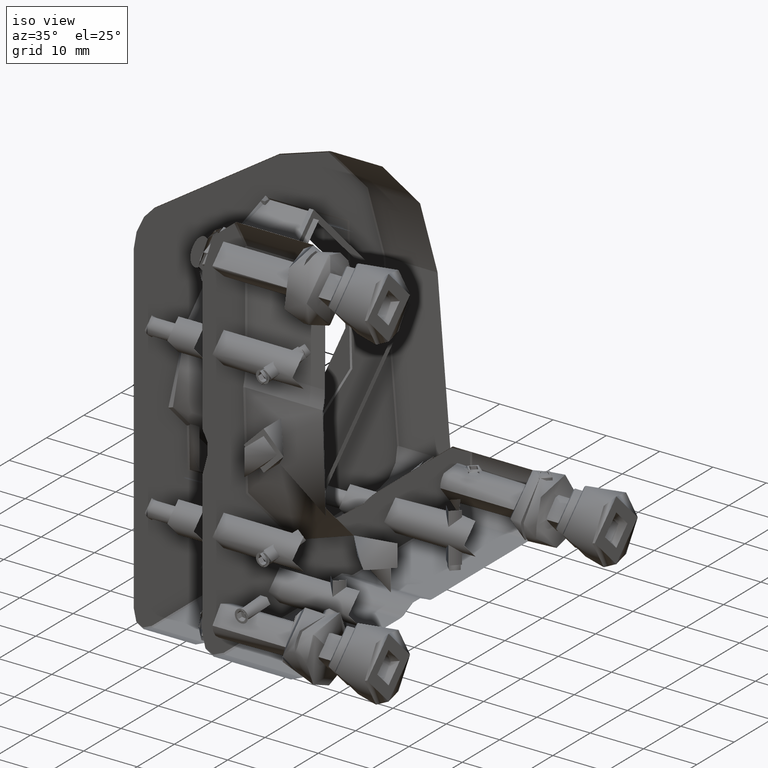
[diagram: clean part render]
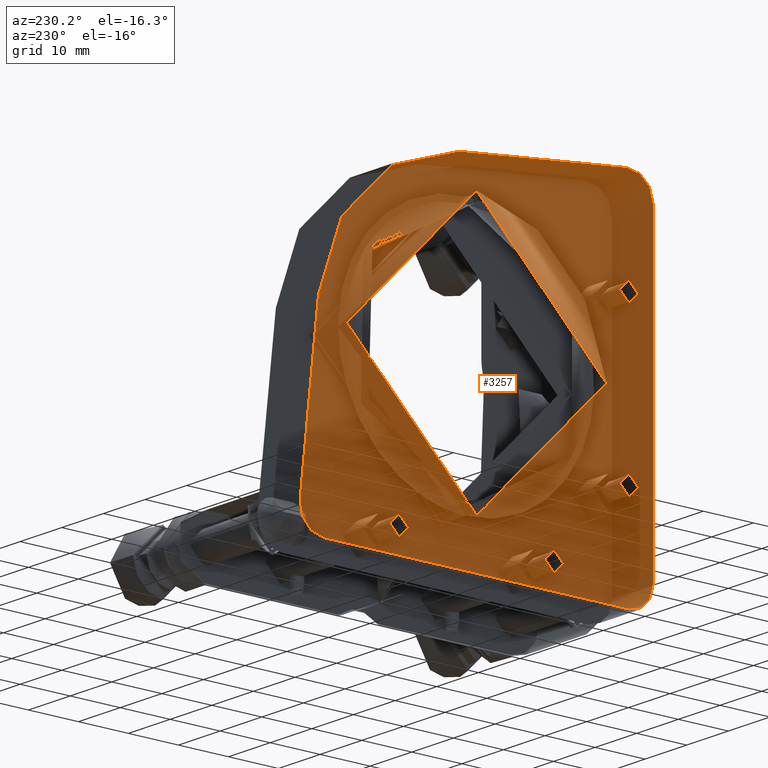
[diagram: tour spotlight — one face highlighted and labeled with its STEP entity id]
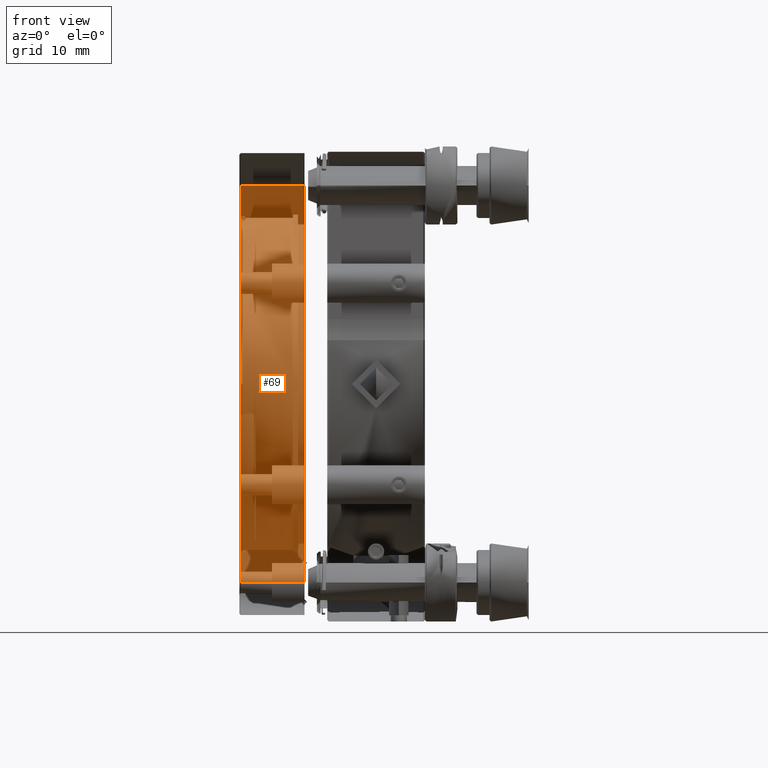
[diagram: tour spotlight — one face highlighted and labeled with its STEP entity id]
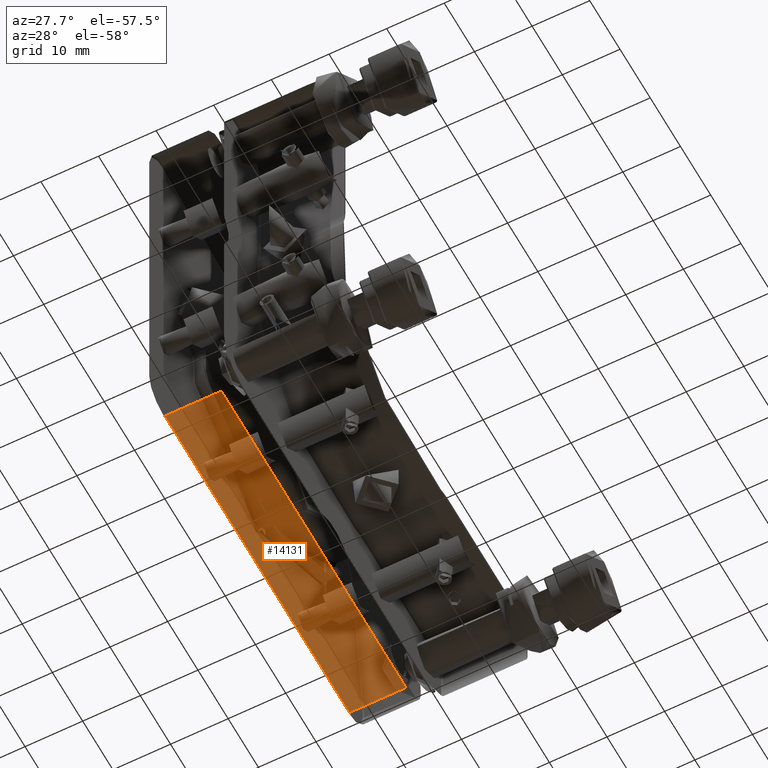
[diagram: tour spotlight — one face highlighted and labeled with its STEP entity id]
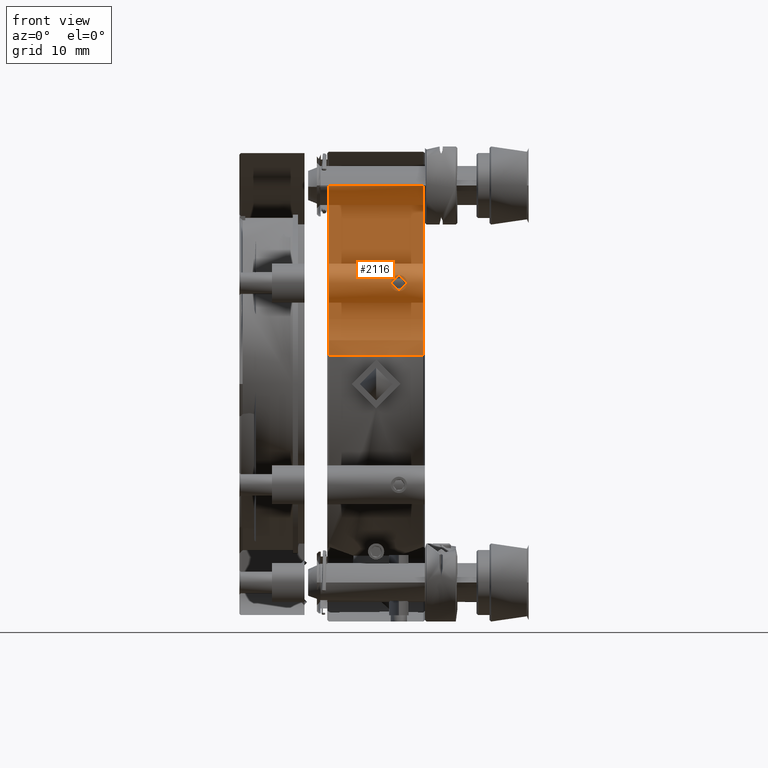
[diagram: tour spotlight — one face highlighted and labeled with its STEP entity id]
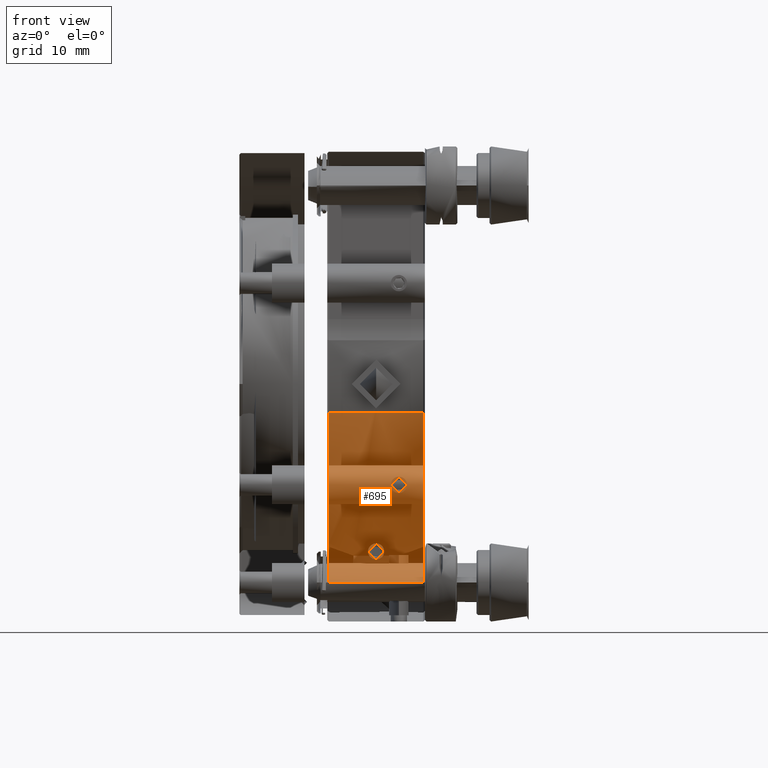
[diagram: tour spotlight — one face highlighted and labeled with its STEP entity id]
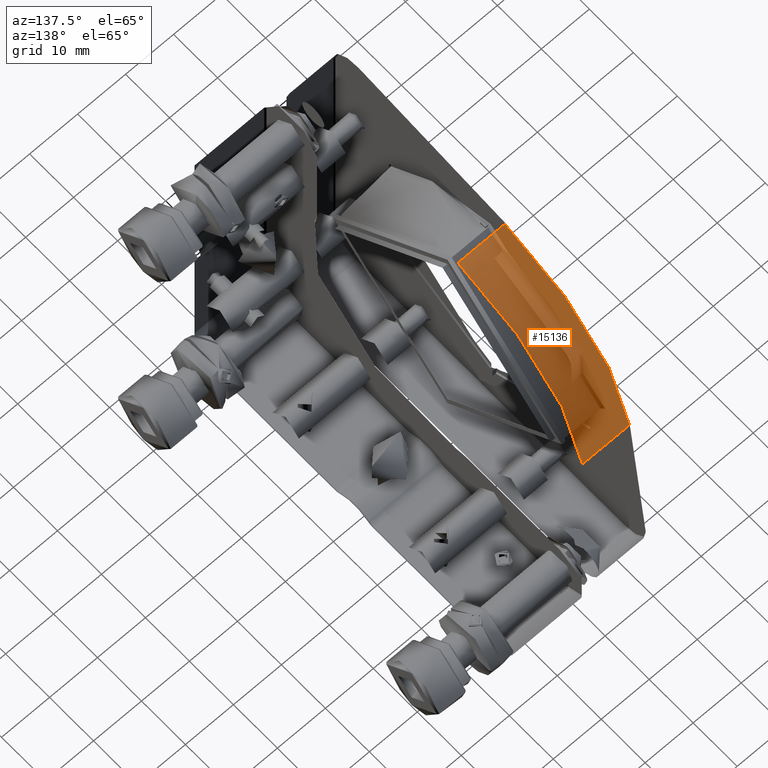
[diagram: tour spotlight — one face highlighted and labeled with its STEP entity id]
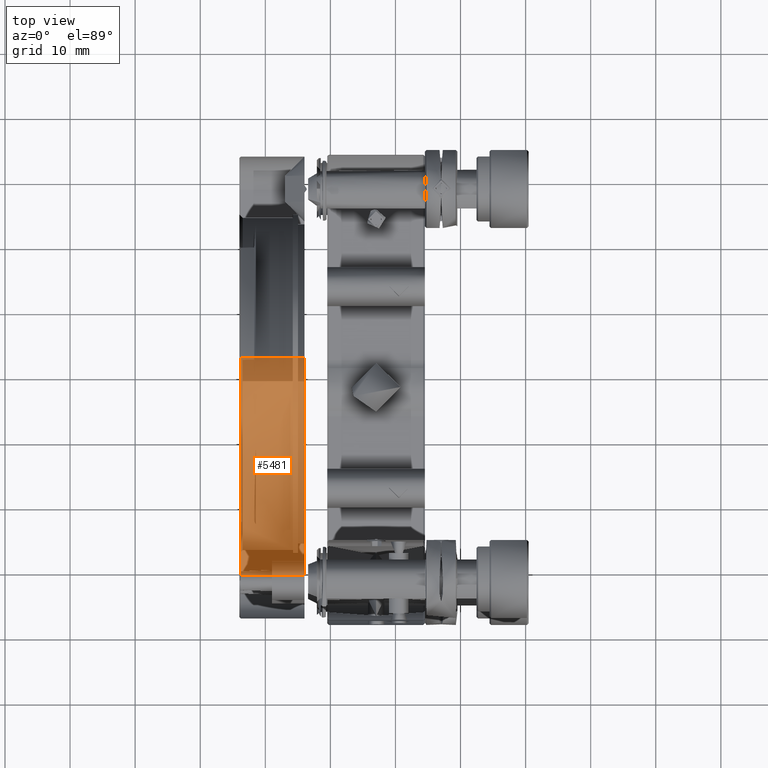
[diagram: tour spotlight — one face highlighted and labeled with its STEP entity id]
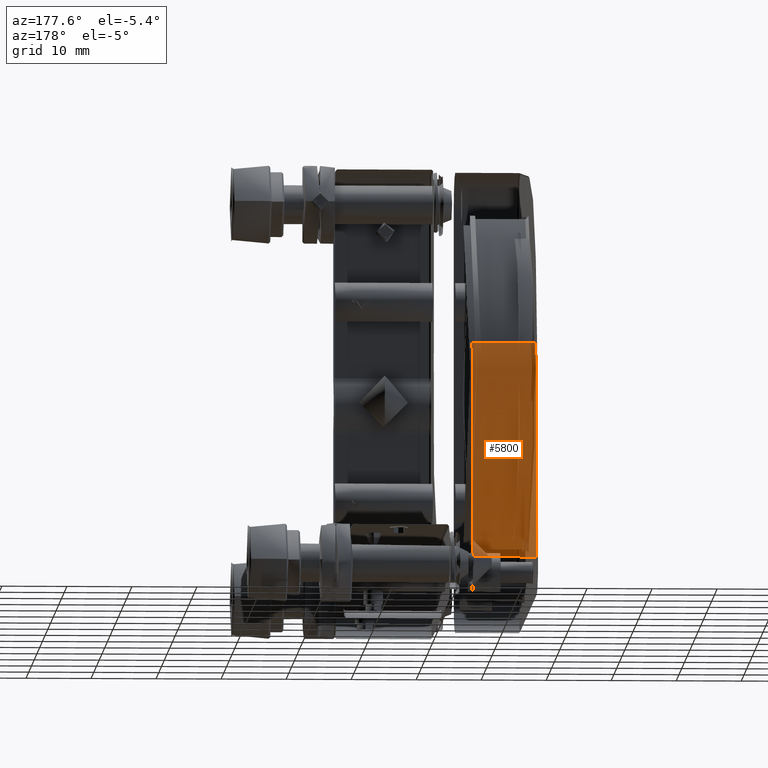
[diagram: tour spotlight — one face highlighted and labeled with its STEP entity id]
A machine part: a face-by-face anatomy tour. The part has 364 B-rep faces; the first image is the clean iso view, then the 8 largest visible faces are spotlighted one at a time (largest first), each with its STEP entity span.

Face 1 — auxiliary view, entity #3257. In plain terms, the highlighted planar face has unit normal (-1, 0, 0).
Definition (entity closure, byte-faithful):
#10 = AXIS2_PLACEMENT_3D ( 'NONE', #828, #16608, #5826 ) ;
#209 = EDGE_CURVE ( 'NONE', #2320, #2320, #5659, .T. ) ;
#268 = EDGE_LOOP ( 'NONE', ( #15330 ) ) ;
#753 = AXIS2_PLACEMENT_3D ( 'NONE', #10348, #15265, #1158 ) ;
#769 = CARTESIAN_POINT ( 'NONE',  ( -13.97561932289596243, 33.95442578108000475, 22.02231683014820618 ) ) ;
#828 = CARTESIAN_POINT ( 'NONE',  ( -13.97561932288231290, -31.81707137695324050, 67.50000000000004263 ) ) ;
#858 = CARTESIAN_POINT ( 'NONE',  ( -13.97561932287453779, 14.18292862304677016, 23.34999999993351594 ) ) ;
#1158 = DIRECTION ( 'NONE',  ( 0.000000000000000000, 1.000000000000000000, 0.000000000000000000 ) ) ;
#1509 = VECTOR ( 'NONE', #4319, 1000.000000000000000 ) ;
#1709 = CIRCLE ( 'NONE', #7025, 26.02499999999999858 ) ;
#1754 = AXIS2_PLACEMENT_3D ( 'NONE', #18549, #11008, #14153 ) ;
#1816 = DIRECTION ( 'NONE',  ( 1.000000000000000000, -0.000000000000000000, -0.000000000000000000 ) ) ;
#2029 = DIRECTION ( 'NONE',  ( 0.000000000000000000, 0.000000000000000000, 1.000000000000000000 ) ) ;
#2047 = ORIENTED_EDGE ( 'NONE', *, *, #20412, .T. ) ;
#2320 = VERTEX_POINT ( 'NONE', #858 ) ;
#2561 = CARTESIAN_POINT ( 'NONE',  ( -13.97561932291420383, 2.143277622765539014, 83.61116867184992429 ) ) ;
#2602 = DIRECTION ( 'NONE',  ( 1.000000000000000000, -3.332802067198476766E-17, -0.000000000000000000 ) ) ;
#2700 = CARTESIAN_POINT ( 'NONE',  ( -13.97561932288231290, -31.81707137695324050, 69.34999999993355857 ) ) ;
#2774 = CARTESIAN_POINT ( 'NONE',  ( -13.97561932291419318, 30.29409729489669090, 55.46034899971878929 ) ) ;
#2932 = DIRECTION ( 'NONE',  ( 2.578534704880077024E-16, -0.1088160062804642558, 0.9940619079198085295 ) ) ;
#3023 = CARTESIAN_POINT ( 'NONE',  ( -13.97561932292437703, -36.61707137694305914, 21.50000000000000355 ) ) ;
#3244 = CARTESIAN_POINT ( 'NONE',  ( -13.97561932287771569, -31.81707137695323340, 82.50000000000000000 ) ) ;
#3257 = ADVANCED_FACE ( 'NONE', ( #13763, #12098, #18486, #19747, #10530, #3953 ), #5421, .F. ) ;
#3796 = VERTEX_POINT ( 'NONE', #2774 ) ;
#3953 = FACE_OUTER_BOUND ( 'NONE', #12142, .T. ) ;
#4159 = DIRECTION ( 'NONE',  ( 0.000000000000000000, 0.000000000000000000, 1.000000000000000000 ) ) ;
#4268 = CARTESIAN_POINT ( 'NONE',  ( -13.97561932291420383, -27.34207137695324974, 52.00000000000001421 ) ) ;
#4279 = AXIS2_PLACEMENT_3D ( 'NONE', #13602, #11936, #2029 ) ;
#4319 = DIRECTION ( 'NONE',  ( 9.773090005503137866E-17, 9.773090005503137866E-17, -1.000000000000000000 ) ) ;
#4406 = EDGE_CURVE ( 'NONE', #10009, #7317, #13608, .T. ) ;
#4798 = EDGE_LOOP ( 'NONE', ( #15251 ) ) ;
#4813 = LINE ( 'NONE', #6369, #7322 ) ;
#5030 = EDGE_CURVE ( 'NONE', #6405, #7443, #10577, .T. ) ;
#5254 = ORIENTED_EDGE ( 'NONE', *, *, #19103, .T. ) ;
#5421 = PLANE ( 'NONE',  #14533 ) ;
#5659 = CIRCLE ( 'NONE', #17350, 1.849999999933515937 ) ;
#5826 = DIRECTION ( 'NONE',  ( 0.000000000000000000, 0.000000000000000000, 1.000000000000000000 ) ) ;
#6214 = CARTESIAN_POINT ( 'NONE',  ( -13.97561932291419318, 2.143277622765529689, 83.61116867184993851 ) ) ;
#6245 = ORIENTED_EDGE ( 'NONE', *, *, #209, .F. ) ;
#6369 = CARTESIAN_POINT ( 'NONE',  ( -13.97561932291420561, 33.95442578106186460, 22.02231683014622377 ) ) ;
#6405 = VERTEX_POINT ( 'NONE', #14713 ) ;
#6573 = VECTOR ( 'NONE', #14528, 1000.000000000000000 ) ;
#7025 = AXIS2_PLACEMENT_3D ( 'NONE', #13360, #2602, #13562 ) ;
#7283 = VERTEX_POINT ( 'NONE', #18594 ) ;
#7317 = VERTEX_POINT ( 'NONE', #14664 ) ;
#7322 = VECTOR ( 'NONE', #2932, 1000.000000000000227 ) ;
#7443 = VERTEX_POINT ( 'NONE', #769 ) ;
#7679 = CARTESIAN_POINT ( 'NONE',  ( -13.97561932289595532, -31.29475454680504498, 87.27149715803322749 ) ) ;
#7682 = DIRECTION ( 'NONE',  ( 0.000000000000000000, 1.000000000000000000, 0.000000000000000000 ) ) ;
#7846 = VERTEX_POINT ( 'NONE', #12542 ) ;
#8001 = EDGE_LOOP ( 'NONE', ( #6245 ) ) ;
#8221 = EDGE_CURVE ( 'NONE', #7846, #7846, #14309, .T. ) ;
#8421 = CIRCLE ( 'NONE', #13089, 31.80000000000002203 ) ;
#9425 = DIRECTION ( 'NONE',  ( 1.000000000000000000, -0.000000000000000000, -0.000000000000000000 ) ) ;
#9720 = LINE ( 'NONE', #11282, #6573 ) ;
#10009 = VERTEX_POINT ( 'NONE', #7679 ) ;
#10112 = ORIENTED_EDGE ( 'NONE', *, *, #14120, .T. ) ;
#10303 = ORIENTED_EDGE ( 'NONE', *, *, #10439, .T. ) ;
#10348 = CARTESIAN_POINT ( 'NONE',  ( -13.97561932293455911, -31.81707137695322274, 21.50000000000000000 ) ) ;
#10431 = VERTEX_POINT ( 'NONE', #2700 ) ;
#10439 = EDGE_CURVE ( 'NONE', #7443, #3796, #4813, .T. ) ;
#10530 = FACE_BOUND ( 'NONE', #8001, .T. ) ;
#10577 = CIRCLE ( 'NONE', #18271, 4.800000000042471626 ) ;
#10794 = ORIENTED_EDGE ( 'NONE', *, *, #16923, .F. ) ;
#10861 = EDGE_CURVE ( 'NONE', #19663, #10009, #12165, .T. ) ;
#10926 = VERTEX_POINT ( 'NONE', #16454 ) ;
#11008 = DIRECTION ( 'NONE',  ( 1.000000000000000000, -0.000000000000000000, -0.000000000000000000 ) ) ;
#11282 = CARTESIAN_POINT ( 'NONE',  ( -13.97561932291420028, 34.18292862304677016, 16.69999999999999218 ) ) ;
#11387 = VECTOR ( 'NONE', #18763, 1000.000000000000227 ) ;
#11890 = CARTESIAN_POINT ( 'NONE',  ( -13.97561932291420028, -1.317071376953247608, 52.00000000000001421 ) ) ;
#11936 = DIRECTION ( 'NONE',  ( 1.000000000000000000, -0.000000000000000000, -0.000000000000000000 ) ) ;
#12098 = FACE_BOUND ( 'NONE', #268, .T. ) ;
#12142 = EDGE_LOOP ( 'NONE', ( #5254, #17511, #16747, #10303, #10112, #15777, #16993, #2047 ) ) ;
#12165 = LINE ( 'NONE', #2561, #11387 ) ;
#12459 = EDGE_CURVE ( 'NONE', #10926, #6405, #9720, .T. ) ;
#12542 = CARTESIAN_POINT ( 'NONE',  ( -13.97561932294502718, -31.81707137695325471, 38.34999999999036646 ) ) ;
#13079 = DIRECTION ( 'NONE',  ( 0.000000000000000000, 0.000000000000000000, -1.000000000000000000 ) ) ;
#13089 = AXIS2_PLACEMENT_3D ( 'NONE', #13280, #1816, #13079 ) ;
#13280 = CARTESIAN_POINT ( 'NONE',  ( -13.97561932291419318, -1.317071376953247608, 52.00000000000001421 ) ) ;
#13360 = CARTESIAN_POINT ( 'NONE',  ( -13.97561932291420383, -1.317071376953247608, 52.00000000000001421 ) ) ;
#13562 = DIRECTION ( 'NONE',  ( 0.000000000000000000, -1.000000000000000000, 0.000000000000000000 ) ) ;
#13602 = CARTESIAN_POINT ( 'NONE',  ( -13.97561932294502718, -31.81707137695325471, 36.50000000000000711 ) ) ;
#13608 = CIRCLE ( 'NONE', #16962, 4.800000000007006662 ) ;
#13763 = FACE_BOUND ( 'NONE', #15676, .T. ) ;
#14120 = EDGE_CURVE ( 'NONE', #3796, #19663, #8421, .T. ) ;
#14153 = DIRECTION ( 'NONE',  ( 0.000000000000000000, 0.000000000000000000, 1.000000000000000000 ) ) ;
#14309 = CIRCLE ( 'NONE', #4279, 1.849999999990359356 ) ;
#14322 = DIRECTION ( 'NONE',  ( 1.000000000000000000, 0.000000000000000000, 0.000000000000000000 ) ) ;
#14528 = DIRECTION ( 'NONE',  ( 0.000000000000000000, 1.000000000000000000, -0.000000000000000000 ) ) ;
#14533 = AXIS2_PLACEMENT_3D ( 'NONE', #11890, #18378, #4159 ) ;
#14664 = CARTESIAN_POINT ( 'NONE',  ( -13.97561932288683728, -36.61707137694734371, 82.50000000000001421 ) ) ;
#14713 = CARTESIAN_POINT ( 'NONE',  ( -13.97561932289596065, 29.18292862304677016, 16.69999999998174900 ) ) ;
#15251 = ORIENTED_EDGE ( 'NONE', *, *, #8221, .F. ) ;
#15265 = DIRECTION ( 'NONE',  ( 1.000000000000000000, -1.734723475999210005E-16, 0.000000000000000000 ) ) ;
#15330 = ORIENTED_EDGE ( 'NONE', *, *, #15386, .F. ) ;
#15386 = EDGE_CURVE ( 'NONE', #10431, #10431, #20031, .T. ) ;
#15437 = EDGE_LOOP ( 'NONE', ( #16344 ) ) ;
#15676 = EDGE_LOOP ( 'NONE', ( #10794 ) ) ;
#15777 = ORIENTED_EDGE ( 'NONE', *, *, #10861, .T. ) ;
#16344 = ORIENTED_EDGE ( 'NONE', *, *, #18635, .F. ) ;
#16454 = CARTESIAN_POINT ( 'NONE',  ( -13.97561932294368070, -31.81707137695322274, 16.69999999998076490 ) ) ;
#16608 = DIRECTION ( 'NONE',  ( 1.000000000000000000, -0.000000000000000000, -0.000000000000000000 ) ) ;
#16747 = ORIENTED_EDGE ( 'NONE', *, *, #5030, .T. ) ;
#16923 = EDGE_CURVE ( 'NONE', #18698, #18698, #1709, .T. ) ;
#16953 = VERTEX_POINT ( 'NONE', #3023 ) ;
#16962 = AXIS2_PLACEMENT_3D ( 'NONE', #3244, #14322, #17458 ) ;
#16993 = ORIENTED_EDGE ( 'NONE', *, *, #4406, .T. ) ;
#17295 = DIRECTION ( 'NONE',  ( 1.000000000000000000, -1.734723475999210005E-16, 0.000000000000000000 ) ) ;
#17350 = AXIS2_PLACEMENT_3D ( 'NONE', #19245, #9425, #19147 ) ;
#17458 = DIRECTION ( 'NONE',  ( 0.000000000000000000, 0.000000000000000000, -1.000000000000000000 ) ) ;
#17511 = ORIENTED_EDGE ( 'NONE', *, *, #12459, .T. ) ;
#17775 = CIRCLE ( 'NONE', #753, 4.800000000042478732 ) ;
#18104 = CIRCLE ( 'NONE', #1754, 1.849999999933515937 ) ;
#18271 = AXIS2_PLACEMENT_3D ( 'NONE', #20233, #17295, #7682 ) ;
#18378 = DIRECTION ( 'NONE',  ( -1.000000000000000000, 0.000000000000000000, 0.000000000000000000 ) ) ;
#18486 = FACE_BOUND ( 'NONE', #4798, .T. ) ;
#18549 = CARTESIAN_POINT ( 'NONE',  ( -13.97561932287453779, -16.81707137695326182, 21.50000000000000000 ) ) ;
#18594 = CARTESIAN_POINT ( 'NONE',  ( -13.97561932287453779, -16.81707137695326182, 23.34999999993351594 ) ) ;
#18635 = EDGE_CURVE ( 'NONE', #7283, #7283, #18104, .T. ) ;
#18644 = CARTESIAN_POINT ( 'NONE',  ( -13.97561932291419318, -36.61707137695324121, 16.50000000000000000 ) ) ;
#18698 = VERTEX_POINT ( 'NONE', #4268 ) ;
#18763 = DIRECTION ( 'NONE',  ( 3.094241645856092922E-16, -0.9940619079198085295, 0.1088160062804641587 ) ) ;
#19103 = EDGE_CURVE ( 'NONE', #16953, #10926, #17775, .T. ) ;
#19147 = DIRECTION ( 'NONE',  ( 0.000000000000000000, 0.000000000000000000, 1.000000000000000000 ) ) ;
#19245 = CARTESIAN_POINT ( 'NONE',  ( -13.97561932287453779, 14.18292862304677016, 21.50000000000000000 ) ) ;
#19663 = VERTEX_POINT ( 'NONE', #6214 ) ;
#19747 = FACE_BOUND ( 'NONE', #15437, .T. ) ;
#20031 = CIRCLE ( 'NONE', #10, 1.849999999933515937 ) ;
#20233 = CARTESIAN_POINT ( 'NONE',  ( -13.97561932287771924, 29.18292862304677016, 21.50000000000000000 ) ) ;
#20412 = EDGE_CURVE ( 'NONE', #7317, #16953, #20420, .T. ) ;
#20420 = LINE ( 'NONE', #18644, #1509 ) ;

Face 2 — front view, entity #69. In plain terms, the highlighted planar face has unit normal (-0, 1, 0).
Definition (entity closure, byte-faithful):
#69 = ADVANCED_FACE ( 'NONE', ( #5552 ), #10049, .T. ) ;
#1015 = ORIENTED_EDGE ( 'NONE', *, *, #18351, .T. ) ;
#1100 = EDGE_CURVE ( 'NONE', #12466, #8326, #11094, .T. ) ;
#1475 = CARTESIAN_POINT ( 'NONE',  ( -13.77561932291420810, -36.81707137695322274, 16.50000000000000000 ) ) ;
#1580 = CARTESIAN_POINT ( 'NONE',  ( -3.975619322914199394, -36.81707137695322274, 21.50000000000000000 ) ) ;
#3573 = DIRECTION ( 'NONE',  ( -0.000000000000000000, 1.000000000000000000, 1.954618001100627820E-16 ) ) ;
#4106 = DIRECTION ( 'NONE',  ( 1.000000000000000000, -0.000000000000000000, -0.000000000000000000 ) ) ;
#4420 = CARTESIAN_POINT ( 'NONE',  ( -3.975619322914199394, -36.81707137695322984, 82.50000000000000000 ) ) ;
#4475 = CARTESIAN_POINT ( 'NONE',  ( -13.77561932291763647, -36.81707137694039034, 82.50000000000000000 ) ) ;
#5552 = FACE_OUTER_BOUND ( 'NONE', #15380, .T. ) ;
#5787 = EDGE_CURVE ( 'NONE', #9614, #8326, #13703, .T. ) ;
#6701 = CARTESIAN_POINT ( 'NONE',  ( -3.975619322914199394, -36.81707137695322274, 16.50000000000000000 ) ) ;
#7659 = AXIS2_PLACEMENT_3D ( 'NONE', #6701, #3573, #14863 ) ;
#7799 = LINE ( 'NONE', #9165, #20100 ) ;
#8326 = VERTEX_POINT ( 'NONE', #4420 ) ;
#8338 = VECTOR ( 'NONE', #14527, 1000.000000000000000 ) ;
#8948 = VERTEX_POINT ( 'NONE', #11445 ) ;
#9015 = CARTESIAN_POINT ( 'NONE',  ( -3.975619322914199394, -36.81707137695323695, 82.50000000000000000 ) ) ;
#9165 = CARTESIAN_POINT ( 'NONE',  ( -3.975619322914199394, -36.81707137695322274, 21.50000000000000000 ) ) ;
#9614 = VERTEX_POINT ( 'NONE', #4475 ) ;
#9635 = ORIENTED_EDGE ( 'NONE', *, *, #1100, .F. ) ;
#10049 = PLANE ( 'NONE',  #7659 ) ;
#10414 = EDGE_CURVE ( 'NONE', #8948, #9614, #12540, .T. ) ;
#11070 = ORIENTED_EDGE ( 'NONE', *, *, #5787, .T. ) ;
#11094 = LINE ( 'NONE', #14233, #13012 ) ;
#11445 = CARTESIAN_POINT ( 'NONE',  ( -13.77561932291420810, -36.81707137695322274, 21.50000000000000355 ) ) ;
#11928 = ORIENTED_EDGE ( 'NONE', *, *, #10414, .T. ) ;
#12466 = VERTEX_POINT ( 'NONE', #1580 ) ;
#12540 = LINE ( 'NONE', #1475, #8338 ) ;
#12552 = DIRECTION ( 'NONE',  ( 0.000000000000000000, 0.000000000000000000, 1.000000000000000000 ) ) ;
#13012 = VECTOR ( 'NONE', #12552, 1000.000000000000000 ) ;
#13703 = LINE ( 'NONE', #9015, #18285 ) ;
#14233 = CARTESIAN_POINT ( 'NONE',  ( -3.975619322914199394, -36.81707137695322274, 52.00000000000001421 ) ) ;
#14527 = DIRECTION ( 'NONE',  ( 0.000000000000000000, -1.954618001100627820E-16, 1.000000000000000000 ) ) ;
#14863 = DIRECTION ( 'NONE',  ( 0.000000000000000000, -1.954618001100627820E-16, 1.000000000000000000 ) ) ;
#15380 = EDGE_LOOP ( 'NONE', ( #11928, #11070, #9635, #1015 ) ) ;
#15541 = DIRECTION ( 'NONE',  ( -1.000000000000000000, -0.000000000000000000, -0.000000000000000000 ) ) ;
#18285 = VECTOR ( 'NONE', #4106, 1000.000000000000000 ) ;
#18351 = EDGE_CURVE ( 'NONE', #12466, #8948, #7799, .T. ) ;
#20100 = VECTOR ( 'NONE', #15541, 1000.000000000000000 ) ;

Face 3 — auxiliary view, entity #14131. In plain terms, the highlighted planar face has unit normal (0, 0, 1).
Definition (entity closure, byte-faithful):
#1581 = VECTOR ( 'NONE', #13160, 1000.000000000000000 ) ;
#1600 = EDGE_CURVE ( 'NONE', #18424, #15434, #9836, .T. ) ;
#1712 = CARTESIAN_POINT ( 'NONE',  ( -3.975619322914199394, 34.18292862304677016, 16.50000000000000000 ) ) ;
#2119 = FACE_OUTER_BOUND ( 'NONE', #6293, .T. ) ;
#3042 = LINE ( 'NONE', #4503, #15853 ) ;
#3837 = VERTEX_POINT ( 'NONE', #11307 ) ;
#4040 = LINE ( 'NONE', #10408, #17063 ) ;
#4356 = CARTESIAN_POINT ( 'NONE',  ( -13.77561932291420810, 29.18292862304677016, 16.50000000000000000 ) ) ;
#4503 = CARTESIAN_POINT ( 'NONE',  ( -3.975619322914199394, 29.18292862304677016, 16.50000000000000000 ) ) ;
#6293 = EDGE_LOOP ( 'NONE', ( #19326, #16621, #20094, #14605 ) ) ;
#8279 = DIRECTION ( 'NONE',  ( 0.000000000000000000, 0.000000000000000000, 1.000000000000000000 ) ) ;
#9836 = LINE ( 'NONE', #14742, #1581 ) ;
#9962 = EDGE_CURVE ( 'NONE', #20220, #3837, #12378, .T. ) ;
#10408 = CARTESIAN_POINT ( 'NONE',  ( -3.975619322914199394, -31.81707137695322274, 16.50000000000000000 ) ) ;
#10482 = CARTESIAN_POINT ( 'NONE',  ( -3.975619322914199394, 29.18292862304677016, 16.50000000000000000 ) ) ;
#11307 = CARTESIAN_POINT ( 'NONE',  ( -3.975619322914199394, -31.81707137695322274, 16.50000000000000000 ) ) ;
#12378 = LINE ( 'NONE', #15849, #16345 ) ;
#13160 = DIRECTION ( 'NONE',  ( 0.000000000000000000, -1.000000000000000000, -0.000000000000000000 ) ) ;
#13759 = AXIS2_PLACEMENT_3D ( 'NONE', #1712, #8279, #16235 ) ;
#13841 = DIRECTION ( 'NONE',  ( -0.000000000000000000, -1.000000000000000000, 0.000000000000000000 ) ) ;
#14131 = ADVANCED_FACE ( 'NONE', ( #2119 ), #14861, .T. ) ;
#14605 = ORIENTED_EDGE ( 'NONE', *, *, #19336, .T. ) ;
#14742 = CARTESIAN_POINT ( 'NONE',  ( -13.77561932291420810, 34.18292862304677016, 16.50000000000000000 ) ) ;
#14861 = PLANE ( 'NONE',  #13759 ) ;
#15434 = VERTEX_POINT ( 'NONE', #19948 ) ;
#15849 = CARTESIAN_POINT ( 'NONE',  ( -3.975619322914199394, -1.317071376953247608, 16.50000000000000000 ) ) ;
#15853 = VECTOR ( 'NONE', #18925, 1000.000000000000000 ) ;
#16235 = DIRECTION ( 'NONE',  ( 1.000000000000000000, 0.000000000000000000, -0.000000000000000000 ) ) ;
#16345 = VECTOR ( 'NONE', #13841, 1000.000000000000000 ) ;
#16621 = ORIENTED_EDGE ( 'NONE', *, *, #17166, .T. ) ;
#17063 = VECTOR ( 'NONE', #18162, 1000.000000000000000 ) ;
#17166 = EDGE_CURVE ( 'NONE', #15434, #3837, #4040, .T. ) ;
#18162 = DIRECTION ( 'NONE',  ( 1.000000000000000000, -0.000000000000000000, -0.000000000000000000 ) ) ;
#18424 = VERTEX_POINT ( 'NONE', #4356 ) ;
#18925 = DIRECTION ( 'NONE',  ( -1.000000000000000000, -0.000000000000000000, 0.000000000000000000 ) ) ;
#19326 = ORIENTED_EDGE ( 'NONE', *, *, #1600, .T. ) ;
#19336 = EDGE_CURVE ( 'NONE', #20220, #18424, #3042, .T. ) ;
#19948 = CARTESIAN_POINT ( 'NONE',  ( -13.77561932294605818, -31.81707137695322274, 16.50000000001614353 ) ) ;
#20094 = ORIENTED_EDGE ( 'NONE', *, *, #9962, .F. ) ;
#20220 = VERTEX_POINT ( 'NONE', #10482 ) ;

Face 4 — front view, entity #2116. In plain terms, the highlighted planar face has unit normal (0, 1, 0).
Definition (entity closure, byte-faithful):
#821 = CIRCLE ( 'NONE', #3824, 1.249999999999987121 ) ;
#918 = ORIENTED_EDGE ( 'NONE', *, *, #11432, .T. ) ;
#1221 = FACE_BOUND ( 'NONE', #7161, .T. ) ;
#1270 = VERTEX_POINT ( 'NONE', #19459 ) ;
#1392 = DIRECTION ( 'NONE',  ( -0.000000000000000000, 0.000000000000000000, -1.000000000000000000 ) ) ;
#1650 = EDGE_CURVE ( 'NONE', #19501, #8695, #2103, .T. ) ;
#1723 = VECTOR ( 'NONE', #6238, 1000.000000000000000 ) ;
#2103 = LINE ( 'NONE', #6380, #11577 ) ;
#2116 = ADVANCED_FACE ( 'NONE', ( #13752, #1221 ), #7587, .T. ) ;
#2752 = LINE ( 'NONE', #12461, #17176 ) ;
#3011 = CARTESIAN_POINT ( 'NONE',  ( 14.52438067708579972, -37.81707137695322274, 82.49999999999998579 ) ) ;
#3824 = AXIS2_PLACEMENT_3D ( 'NONE', #14936, #5008, #11584 ) ;
#4251 = DIRECTION ( 'NONE',  ( 0.000000000000000000, -0.000000000000000000, 1.000000000000000000 ) ) ;
#4686 = VERTEX_POINT ( 'NONE', #10950 ) ;
#4969 = VERTEX_POINT ( 'NONE', #17505 ) ;
#5008 = DIRECTION ( 'NONE',  ( 0.000000000000000000, 1.000000000000000000, 0.000000000000000000 ) ) ;
#5289 = DIRECTION ( 'NONE',  ( -1.000000000000000000, -0.000000000000000000, 0.000000000000000000 ) ) ;
#5951 = VECTOR ( 'NONE', #5289, 1000.000000000000000 ) ;
#6238 = DIRECTION ( 'NONE',  ( 1.000000000000000000, 0.000000000000000000, -0.000000000000000000 ) ) ;
#6380 = CARTESIAN_POINT ( 'NONE',  ( -0.2256193229141847945, -37.81707137695322274, 88.50000000000000000 ) ) ;
#6426 = AXIS2_PLACEMENT_3D ( 'NONE', #12189, #18575, #4251 ) ;
#7161 = EDGE_LOOP ( 'NONE', ( #17572 ) ) ;
#7587 = PLANE ( 'NONE',  #6426 ) ;
#8249 = CARTESIAN_POINT ( 'NONE',  ( -0.2256193229153002355, -37.81707137697914334, 82.49999999999998579 ) ) ;
#8467 = DIRECTION ( 'NONE',  ( -0.000000000000000000, 0.000000000000000000, -1.000000000000000000 ) ) ;
#8472 = CARTESIAN_POINT ( 'NONE',  ( -0.2256193229153002355, -37.81707137694867527, 56.33012701892233309 ) ) ;
#8695 = VERTEX_POINT ( 'NONE', #8472 ) ;
#9893 = LINE ( 'NONE', #11558, #5951 ) ;
#10950 = CARTESIAN_POINT ( 'NONE',  ( 10.52438067708579972, -37.81707137695316590, 66.25000000000014211 ) ) ;
#11432 = EDGE_CURVE ( 'NONE', #19501, #4969, #15874, .T. ) ;
#11558 = CARTESIAN_POINT ( 'NONE',  ( 14.52438067708579972, -37.81707137695322274, 56.33012701892233309 ) ) ;
#11577 = VECTOR ( 'NONE', #8467, 1000.000000000000000 ) ;
#11584 = DIRECTION ( 'NONE',  ( 0.000000000000000000, 0.000000000000000000, -1.000000000000000000 ) ) ;
#12189 = CARTESIAN_POINT ( 'NONE',  ( 14.52438067708579972, -37.81707137695322274, 88.50000000000000000 ) ) ;
#12461 = CARTESIAN_POINT ( 'NONE',  ( 14.27438067708578906, -37.81707137695322274, 88.50000000000000000 ) ) ;
#12989 = EDGE_CURVE ( 'NONE', #1270, #8695, #9893, .T. ) ;
#13752 = FACE_OUTER_BOUND ( 'NONE', #16887, .T. ) ;
#14936 = CARTESIAN_POINT ( 'NONE',  ( 10.52438067708579972, -37.81707137695316590, 67.50000000000012790 ) ) ;
#15874 = LINE ( 'NONE', #3011, #1723 ) ;
#16887 = EDGE_LOOP ( 'NONE', ( #18633, #918, #19791, #19115 ) ) ;
#17176 = VECTOR ( 'NONE', #1392, 1000.000000000000000 ) ;
#17505 = CARTESIAN_POINT ( 'NONE',  ( 14.27438067708578906, -37.81707137695322274, 82.49999999999998579 ) ) ;
#17572 = ORIENTED_EDGE ( 'NONE', *, *, #19396, .F. ) ;
#18575 = DIRECTION ( 'NONE',  ( 0.000000000000000000, 1.000000000000000000, 0.000000000000000000 ) ) ;
#18633 = ORIENTED_EDGE ( 'NONE', *, *, #1650, .F. ) ;
#19115 = ORIENTED_EDGE ( 'NONE', *, *, #12989, .T. ) ;
#19396 = EDGE_CURVE ( 'NONE', #4686, #4686, #821, .T. ) ;
#19459 = CARTESIAN_POINT ( 'NONE',  ( 14.27438067708266090, -37.81707137697286214, 56.33012701892233309 ) ) ;
#19501 = VERTEX_POINT ( 'NONE', #8249 ) ;
#19791 = ORIENTED_EDGE ( 'NONE', *, *, #20451, .T. ) ;
#20451 = EDGE_CURVE ( 'NONE', #4969, #1270, #2752, .T. ) ;

Face 5 — front view, entity #695. In plain terms, the highlighted planar face has unit normal (0, 1, 0).
Definition (entity closure, byte-faithful):
#40 = AXIS2_PLACEMENT_3D ( 'NONE', #2208, #16827, #12119 ) ;
#296 = VECTOR ( 'NONE', #14400, 1000.000000000000000 ) ;
#695 = ADVANCED_FACE ( 'NONE', ( #8616, #7039, #18339 ), #4017, .T. ) ;
#1134 = CARTESIAN_POINT ( 'NONE',  ( 10.52438067708579972, -37.81707137695327248, 35.25000000000016342 ) ) ;
#1760 = CARTESIAN_POINT ( 'NONE',  ( -0.2256193229141847945, -37.81707137695322274, 88.50000000000000000 ) ) ;
#2079 = EDGE_LOOP ( 'NONE', ( #3201, #5766, #15400, #3259 ) ) ;
#2208 = CARTESIAN_POINT ( 'NONE',  ( 7.024380677085800606, -37.81707137695322274, 26.24999999999999645 ) ) ;
#2599 = VERTEX_POINT ( 'NONE', #15562 ) ;
#2756 = VERTEX_POINT ( 'NONE', #17678 ) ;
#3101 = LINE ( 'NONE', #19091, #15993 ) ;
#3201 = ORIENTED_EDGE ( 'NONE', *, *, #12949, .F. ) ;
#3259 = ORIENTED_EDGE ( 'NONE', *, *, #14489, .T. ) ;
#3327 = DIRECTION ( 'NONE',  ( -1.000000000000000000, 0.000000000000000000, 0.000000000000000000 ) ) ;
#3916 = ORIENTED_EDGE ( 'NONE', *, *, #15670, .T. ) ;
#4017 = PLANE ( 'NONE',  #19368 ) ;
#5378 = CARTESIAN_POINT ( 'NONE',  ( 14.52438067708579972, -37.81707137695322274, 47.66987298107795823 ) ) ;
#5580 = DIRECTION ( 'NONE',  ( 0.000000000000000000, -0.000000000000000000, 1.000000000000000000 ) ) ;
#5727 = DIRECTION ( 'NONE',  ( 0.000000000000000000, 0.000000000000000000, -1.000000000000000000 ) ) ;
#5766 = ORIENTED_EDGE ( 'NONE', *, *, #9124, .T. ) ;
#5875 = CARTESIAN_POINT ( 'NONE',  ( 14.27438067708422409, -37.81707137693446441, 21.49999999999999289 ) ) ;
#7039 = FACE_BOUND ( 'NONE', #14616, .T. ) ;
#7279 = DIRECTION ( 'NONE',  ( 0.000000000000000000, 1.000000000000000000, 0.000000000000000000 ) ) ;
#8130 = LINE ( 'NONE', #16083, #19126 ) ;
#8240 = VERTEX_POINT ( 'NONE', #18124 ) ;
#8616 = FACE_OUTER_BOUND ( 'NONE', #2079, .T. ) ;
#8887 = EDGE_CURVE ( 'NONE', #16597, #20252, #3101, .T. ) ;
#9124 = EDGE_CURVE ( 'NONE', #2756, #16597, #15102, .T. ) ;
#9596 = LINE ( 'NONE', #1760, #296 ) ;
#9678 = DIRECTION ( 'NONE',  ( -0.000000000000000000, 0.000000000000000000, -1.000000000000000000 ) ) ;
#10539 = VERTEX_POINT ( 'NONE', #1134 ) ;
#11893 = CARTESIAN_POINT ( 'NONE',  ( 10.52438067708579972, -37.81707137695327248, 36.50000000000014921 ) ) ;
#12010 = CIRCLE ( 'NONE', #12712, 1.249999999999987121 ) ;
#12119 = DIRECTION ( 'NONE',  ( 0.000000000000000000, 0.000000000000000000, -1.000000000000000000 ) ) ;
#12676 = CARTESIAN_POINT ( 'NONE',  ( 14.27438067708422587, -37.81707137695841681, 47.66987298107795823 ) ) ;
#12712 = AXIS2_PLACEMENT_3D ( 'NONE', #11893, #7279, #5727 ) ;
#12949 = EDGE_CURVE ( 'NONE', #2756, #8240, #9596, .T. ) ;
#13107 = DIRECTION ( 'NONE',  ( 1.000000000000000000, 0.000000000000000000, -0.000000000000000000 ) ) ;
#13515 = CARTESIAN_POINT ( 'NONE',  ( 14.52438067708579972, -37.81707137695322274, 88.50000000000000000 ) ) ;
#14400 = DIRECTION ( 'NONE',  ( -0.000000000000000000, 0.000000000000000000, -1.000000000000000000 ) ) ;
#14489 = EDGE_CURVE ( 'NONE', #20252, #8240, #8130, .T. ) ;
#14616 = EDGE_LOOP ( 'NONE', ( #18293 ) ) ;
#14648 = VECTOR ( 'NONE', #13107, 1000.000000000000000 ) ;
#15102 = LINE ( 'NONE', #5378, #14648 ) ;
#15400 = ORIENTED_EDGE ( 'NONE', *, *, #8887, .T. ) ;
#15467 = EDGE_CURVE ( 'NONE', #10539, #10539, #12010, .T. ) ;
#15562 = CARTESIAN_POINT ( 'NONE',  ( 7.024380677085800606, -37.81707137695322274, 25.00000000000000000 ) ) ;
#15670 = EDGE_CURVE ( 'NONE', #2599, #2599, #17057, .T. ) ;
#15993 = VECTOR ( 'NONE', #9678, 1000.000000000000000 ) ;
#16083 = CARTESIAN_POINT ( 'NONE',  ( 14.52438067708579972, -37.81707137695322984, 21.49999999999999645 ) ) ;
#16597 = VERTEX_POINT ( 'NONE', #12676 ) ;
#16599 = EDGE_LOOP ( 'NONE', ( #3916 ) ) ;
#16827 = DIRECTION ( 'NONE',  ( -0.000000000000000000, -1.000000000000000000, -0.000000000000000000 ) ) ;
#17057 = CIRCLE ( 'NONE', #40, 1.249999999999994227 ) ;
#17678 = CARTESIAN_POINT ( 'NONE',  ( -0.2256193229141847945, -37.81707137695322274, 47.66987298107795823 ) ) ;
#18124 = CARTESIAN_POINT ( 'NONE',  ( -0.2256193229814799084, -37.81707137686977660, 21.49999999999999289 ) ) ;
#18293 = ORIENTED_EDGE ( 'NONE', *, *, #15467, .F. ) ;
#18339 = FACE_BOUND ( 'NONE', #16599, .T. ) ;
#19091 = CARTESIAN_POINT ( 'NONE',  ( 14.27438067708578906, -37.81707137695322274, 88.50000000000000000 ) ) ;
#19126 = VECTOR ( 'NONE', #3327, 1000.000000000000000 ) ;
#19368 = AXIS2_PLACEMENT_3D ( 'NONE', #13515, #19909, #5580 ) ;
#19909 = DIRECTION ( 'NONE',  ( 0.000000000000000000, 1.000000000000000000, 0.000000000000000000 ) ) ;
#20252 = VERTEX_POINT ( 'NONE', #5875 ) ;

Face 6 — auxiliary view, entity #15136. In plain terms, the highlighted cylindrical surface (partial cylindrical patch) has radius 32 mm, axis along (-1, -0, -0).
Definition (entity closure, byte-faithful):
#115 = EDGE_CURVE ( 'NONE', #12576, #17055, #10324, .T. ) ;
#157 = CARTESIAN_POINT ( 'NONE',  ( -3.975619322914199394, -1.317071376953247608, 52.00000000000001421 ) ) ;
#1211 = VERTEX_POINT ( 'NONE', #9537 ) ;
#1319 = ORIENTED_EDGE ( 'NONE', *, *, #115, .F. ) ;
#1671 = ORIENTED_EDGE ( 'NONE', *, *, #16205, .F. ) ;
#2219 = DIRECTION ( 'NONE',  ( 0.000000000000000000, 0.000000000000000000, 1.000000000000000000 ) ) ;
#3008 = AXIS2_PLACEMENT_3D ( 'NONE', #15690, #19028, #7627 ) ;
#3455 = CARTESIAN_POINT ( 'NONE',  ( -3.738662366922353097, 30.49290967648063955, 55.48211220097487484 ) ) ;
#4873 = ORIENTED_EDGE ( 'NONE', *, *, #12179, .F. ) ;
#5717 = VECTOR ( 'NONE', #11592, 1000.000000000000000 ) ;
#6344 = CARTESIAN_POINT ( 'NONE',  ( -3.738662366922353097, 2.165040824021633004, 83.80998105343390137 ) ) ;
#7627 = DIRECTION ( 'NONE',  ( 0.000000000000000000, 0.000000000000000000, 1.000000000000000000 ) ) ;
#8383 = CARTESIAN_POINT ( 'NONE',  ( -13.77561932291420810, -1.317071376953247608, 52.00000000000001421 ) ) ;
#8580 = VECTOR ( 'NONE', #11053, 1000.000000000000000 ) ;
#9537 = CARTESIAN_POINT ( 'NONE',  ( -3.975619322914199394, 2.165040824021612131, 83.80998105343388715 ) ) ;
#10259 = EDGE_LOOP ( 'NONE', ( #18886, #1319, #1671, #4873 ) ) ;
#10324 = CIRCLE ( 'NONE', #20022, 32.00000000000000711 ) ;
#11053 = DIRECTION ( 'NONE',  ( 1.000000000000000000, 0.000000000000000000, 0.000000000000000000 ) ) ;
#11592 = DIRECTION ( 'NONE',  ( -1.000000000000000000, -0.000000000000000000, -0.000000000000000000 ) ) ;
#11875 = CARTESIAN_POINT ( 'NONE',  ( -13.77561932291421165, 2.165040824021633004, 83.80998105343388715 ) ) ;
#11896 = CARTESIAN_POINT ( 'NONE',  ( -13.77561932291421165, 30.49290967648063244, 55.48211220097487484 ) ) ;
#12179 = EDGE_CURVE ( 'NONE', #1211, #15894, #19082, .T. ) ;
#12576 = VERTEX_POINT ( 'NONE', #11896 ) ;
#12616 = LINE ( 'NONE', #6344, #8580 ) ;
#12736 = AXIS2_PLACEMENT_3D ( 'NONE', #157, #14573, #15172 ) ;
#12822 = EDGE_CURVE ( 'NONE', #17055, #1211, #12616, .T. ) ;
#14113 = CYLINDRICAL_SURFACE ( 'NONE', #3008, 32.00000000000000711 ) ;
#14573 = DIRECTION ( 'NONE',  ( -1.000000000000000000, -0.000000000000000000, -0.000000000000000000 ) ) ;
#14761 = DIRECTION ( 'NONE',  ( 1.000000000000000000, 0.000000000000000000, 0.000000000000000000 ) ) ;
#15136 = ADVANCED_FACE ( 'NONE', ( #17144 ), #14113, .F. ) ;
#15172 = DIRECTION ( 'NONE',  ( 0.000000000000000000, 0.000000000000000000, 1.000000000000000000 ) ) ;
#15690 = CARTESIAN_POINT ( 'NONE',  ( -3.738662366922353097, -1.317071376953247608, 52.00000000000001421 ) ) ;
#15894 = VERTEX_POINT ( 'NONE', #18919 ) ;
#16205 = EDGE_CURVE ( 'NONE', #15894, #12576, #17779, .T. ) ;
#17055 = VERTEX_POINT ( 'NONE', #11875 ) ;
#17144 = FACE_OUTER_BOUND ( 'NONE', #10259, .T. ) ;
#17779 = LINE ( 'NONE', #3455, #5717 ) ;
#18886 = ORIENTED_EDGE ( 'NONE', *, *, #12822, .F. ) ;
#18919 = CARTESIAN_POINT ( 'NONE',  ( -3.975619322914199394, 30.49290967648064310, 55.48211220097487484 ) ) ;
#19028 = DIRECTION ( 'NONE',  ( -1.000000000000000000, -0.000000000000000000, -0.000000000000000000 ) ) ;
#19082 = CIRCLE ( 'NONE', #12736, 32.00000000000000711 ) ;
#20022 = AXIS2_PLACEMENT_3D ( 'NONE', #8383, #14761, #2219 ) ;

Face 7 — top view, entity #5481. In plain terms, the highlighted planar face has unit normal (0, -0.1088, -0.9941).
Definition (entity closure, byte-faithful):
#142 = ORIENTED_EDGE ( 'NONE', *, *, #12822, .T. ) ;
#723 = VECTOR ( 'NONE', #4343, 1000.000000000000000 ) ;
#1211 = VERTEX_POINT ( 'NONE', #9537 ) ;
#1262 = DIRECTION ( 'NONE',  ( -1.000000000000000000, -0.000000000000000000, -0.000000000000000000 ) ) ;
#3422 = FACE_OUTER_BOUND ( 'NONE', #6013, .T. ) ;
#4343 = DIRECTION ( 'NONE',  ( 0.000000000000000000, 0.9940619079198086405, -0.1088160062804639783 ) ) ;
#4565 = CARTESIAN_POINT ( 'NONE',  ( -3.975619322914199394, -31.27299134555093474, 87.47030953959902888 ) ) ;
#5481 = ADVANCED_FACE ( 'NONE', ( #3422 ), #8637, .T. ) ;
#5494 = LINE ( 'NONE', #16783, #723 ) ;
#5806 = VERTEX_POINT ( 'NONE', #17061 ) ;
#6013 = EDGE_LOOP ( 'NONE', ( #9269, #142, #9630, #8536 ) ) ;
#6344 = CARTESIAN_POINT ( 'NONE',  ( -3.738662366922353097, 2.165040824021633004, 83.80998105343390137 ) ) ;
#6643 = DIRECTION ( 'NONE',  ( 0.000000000000000000, 0.9940619079198086405, -0.1088160062804639783 ) ) ;
#6846 = CARTESIAN_POINT ( 'NONE',  ( -3.738662366922353097, 2.165040824021630339, 83.80998105343387294 ) ) ;
#7525 = LINE ( 'NONE', #17043, #11003 ) ;
#7694 = LINE ( 'NONE', #4565, #7743 ) ;
#7743 = VECTOR ( 'NONE', #12599, 1000.000000000000000 ) ;
#8536 = ORIENTED_EDGE ( 'NONE', *, *, #10257, .T. ) ;
#8580 = VECTOR ( 'NONE', #11053, 1000.000000000000000 ) ;
#8637 = PLANE ( 'NONE',  #10918 ) ;
#9269 = ORIENTED_EDGE ( 'NONE', *, *, #11680, .T. ) ;
#9537 = CARTESIAN_POINT ( 'NONE',  ( -3.975619322914199394, 2.165040824021612131, 83.80998105343388715 ) ) ;
#9630 = ORIENTED_EDGE ( 'NONE', *, *, #18329, .F. ) ;
#10257 = EDGE_CURVE ( 'NONE', #5806, #19558, #7525, .T. ) ;
#10918 = AXIS2_PLACEMENT_3D ( 'NONE', #6846, #14598, #6643 ) ;
#11003 = VECTOR ( 'NONE', #1262, 1000.000000000000000 ) ;
#11053 = DIRECTION ( 'NONE',  ( 1.000000000000000000, 0.000000000000000000, 0.000000000000000000 ) ) ;
#11680 = EDGE_CURVE ( 'NONE', #19558, #17055, #5494, .T. ) ;
#11875 = CARTESIAN_POINT ( 'NONE',  ( -13.77561932291421165, 2.165040824021633004, 83.80998105343388715 ) ) ;
#12599 = DIRECTION ( 'NONE',  ( 0.000000000000000000, 0.9940619079198086405, -0.1088160062804637840 ) ) ;
#12616 = LINE ( 'NONE', #6344, #8580 ) ;
#12822 = EDGE_CURVE ( 'NONE', #17055, #1211, #12616, .T. ) ;
#14598 = DIRECTION ( 'NONE',  ( 0.000000000000000000, -0.1088160062804639783, -0.9940619079198086405 ) ) ;
#16304 = CARTESIAN_POINT ( 'NONE',  ( -13.77561932291420810, -31.27299134555094184, 87.47030953959902888 ) ) ;
#16783 = CARTESIAN_POINT ( 'NONE',  ( -13.77561932291420810, 2.165040824021630339, 83.80998105343387294 ) ) ;
#17043 = CARTESIAN_POINT ( 'NONE',  ( -3.738662366922353097, -31.27299134555094184, 87.47030953959902888 ) ) ;
#17055 = VERTEX_POINT ( 'NONE', #11875 ) ;
#17061 = CARTESIAN_POINT ( 'NONE',  ( -3.975619322914199394, -31.27299134555093474, 87.47030953959902888 ) ) ;
#18329 = EDGE_CURVE ( 'NONE', #5806, #1211, #7694, .T. ) ;
#19558 = VERTEX_POINT ( 'NONE', #16304 ) ;

Face 8 — auxiliary view, entity #5800. In plain terms, the highlighted planar face has unit normal (0, -0.9941, -0.1088).
Definition (entity closure, byte-faithful):
#222 = CARTESIAN_POINT ( 'NONE',  ( -3.975619322914199394, 30.49290967648063955, 55.48211220097487484 ) ) ;
#332 = EDGE_CURVE ( 'NONE', #15894, #20489, #14537, .T. ) ;
#1248 = CARTESIAN_POINT ( 'NONE',  ( -4.029645021383207570, 34.12470492152013435, 22.30473844997565891 ) ) ;
#2461 = ORIENTED_EDGE ( 'NONE', *, *, #4157, .T. ) ;
#3455 = CARTESIAN_POINT ( 'NONE',  ( -3.738662366922353097, 30.49290967648063955, 55.48211220097487484 ) ) ;
#4129 = DIRECTION ( 'NONE',  ( 0.000000000000000000, 0.1088160062804644362, -0.9940619079198085295 ) ) ;
#4157 = EDGE_CURVE ( 'NONE', #15996, #16451, #6896, .T. ) ;
#4622 = VECTOR ( 'NONE', #15169, 1000.000000000000000 ) ;
#4635 = EDGE_LOOP ( 'NONE', ( #6199, #2461, #6021, #13027, #6157 ) ) ;
#5717 = VECTOR ( 'NONE', #11592, 1000.000000000000000 ) ;
#5800 = ADVANCED_FACE ( 'NONE', ( #9121 ), #10786, .T. ) ;
#6021 = ORIENTED_EDGE ( 'NONE', *, *, #6100, .F. ) ;
#6100 = EDGE_CURVE ( 'NONE', #20489, #16451, #17261, .T. ) ;
#6157 = ORIENTED_EDGE ( 'NONE', *, *, #16205, .T. ) ;
#6199 = ORIENTED_EDGE ( 'NONE', *, *, #7967, .T. ) ;
#6896 = LINE ( 'NONE', #10146, #4622 ) ;
#6909 = AXIS2_PLACEMENT_3D ( 'NONE', #19998, #12351, #16958 ) ;
#7616 = CARTESIAN_POINT ( 'NONE',  ( -4.004982722725184630, 34.15323816264545798, 22.04408003140564887 ) ) ;
#7967 = EDGE_CURVE ( 'NONE', #12576, #15996, #19917, .T. ) ;
#8075 = CARTESIAN_POINT ( 'NONE',  ( -3.975619322884418327, 34.06806030760564141, 22.82220141251165657 ) ) ;
#8537 = CARTESIAN_POINT ( 'NONE',  ( -4.004982722725184630, 34.15323816264545798, 22.04408003140564887 ) ) ;
#9121 = FACE_OUTER_BOUND ( 'NONE', #4635, .T. ) ;
#9529 = CARTESIAN_POINT ( 'NONE',  ( -13.77561932291420987, 34.15323816264581325, 22.04408003140232708 ) ) ;
#10146 = CARTESIAN_POINT ( 'NONE',  ( -3.738662366922353097, 34.15323816264581325, 22.04408003140232708 ) ) ;
#10786 = PLANE ( 'NONE',  #6909 ) ;
#11284 = VECTOR ( 'NONE', #4129, 1000.000000000000114 ) ;
#11592 = DIRECTION ( 'NONE',  ( -1.000000000000000000, -0.000000000000000000, -0.000000000000000000 ) ) ;
#11896 = CARTESIAN_POINT ( 'NONE',  ( -13.77561932291421165, 30.49290967648063244, 55.48211220097487484 ) ) ;
#12121 = VECTOR ( 'NONE', #12958, 1000.000000000000227 ) ;
#12351 = DIRECTION ( 'NONE',  ( 0.000000000000000000, -0.9940619079198086405, -0.1088160062804644501 ) ) ;
#12576 = VERTEX_POINT ( 'NONE', #11896 ) ;
#12958 = DIRECTION ( 'NONE',  ( 0.000000000000000000, 0.1088160062804643669, -0.9940619079198085295 ) ) ;
#13027 = ORIENTED_EDGE ( 'NONE', *, *, #332, .F. ) ;
#13479 = CARTESIAN_POINT ( 'NONE',  ( -3.975619322884418327, 34.06806030760564141, 22.82220141251165657 ) ) ;
#14537 = LINE ( 'NONE', #222, #12121 ) ;
#15169 = DIRECTION ( 'NONE',  ( 1.000000000000000000, 0.000000000000000000, 0.000000000000000000 ) ) ;
#15894 = VERTEX_POINT ( 'NONE', #18919 ) ;
#15996 = VERTEX_POINT ( 'NONE', #9529 ) ;
#16205 = EDGE_CURVE ( 'NONE', #15894, #12576, #17779, .T. ) ;
#16451 = VERTEX_POINT ( 'NONE', #8537 ) ;
#16958 = DIRECTION ( 'NONE',  ( 0.000000000000000000, 0.1088160062804644362, -0.9940619079198085295 ) ) ;
#17261 = B_SPLINE_CURVE_WITH_KNOTS ( 'NONE', 3,
 ( #13479, #19872, #1248, #7616 ),
 .UNSPECIFIED., .F., .F.,
 ( 4, 4 ),
 ( 1.434782603516774753E-14, 0.0007833200878288453265 ),
 .UNSPECIFIED. ) ;
#17779 = LINE ( 'NONE', #3455, #5717 ) ;
#18919 = CARTESIAN_POINT ( 'NONE',  ( -3.975619322914199394, 30.49290967648064310, 55.48211220097487484 ) ) ;
#19872 = CARTESIAN_POINT ( 'NONE',  ( -4.019187058214945374, 34.09631503872957836, 22.56408725367706580 ) ) ;
#19917 = LINE ( 'NONE', #20021, #11284 ) ;
#19998 = CARTESIAN_POINT ( 'NONE',  ( -3.738662366922353097, 30.49290967648063955, 55.48211220097487484 ) ) ;
#20021 = CARTESIAN_POINT ( 'NONE',  ( -13.77561932291421165, 30.49290967648063955, 55.48211220097487484 ) ) ;
#20489 = VERTEX_POINT ( 'NONE', #8075 ) ;